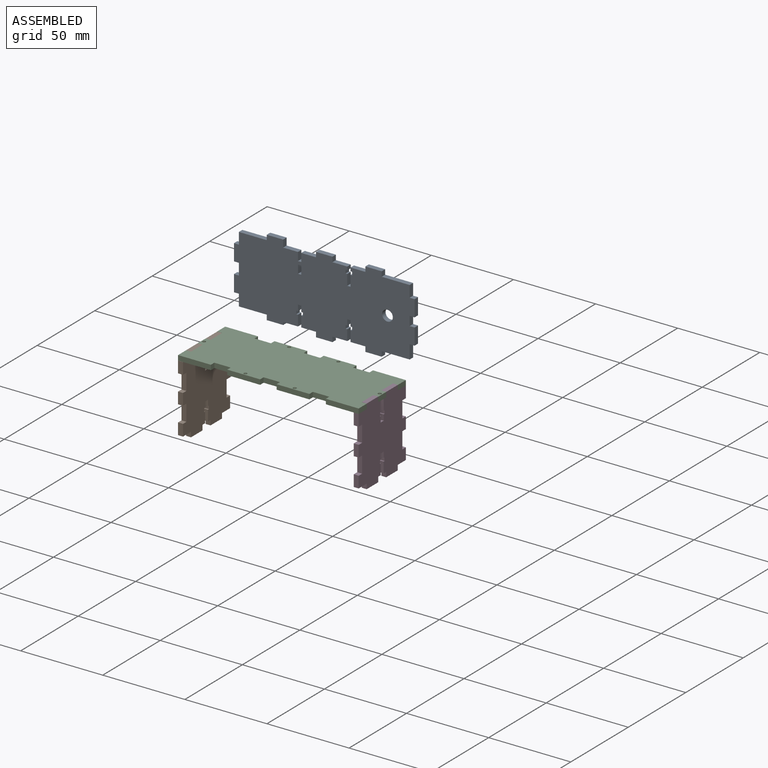
[diagram: assembled view]
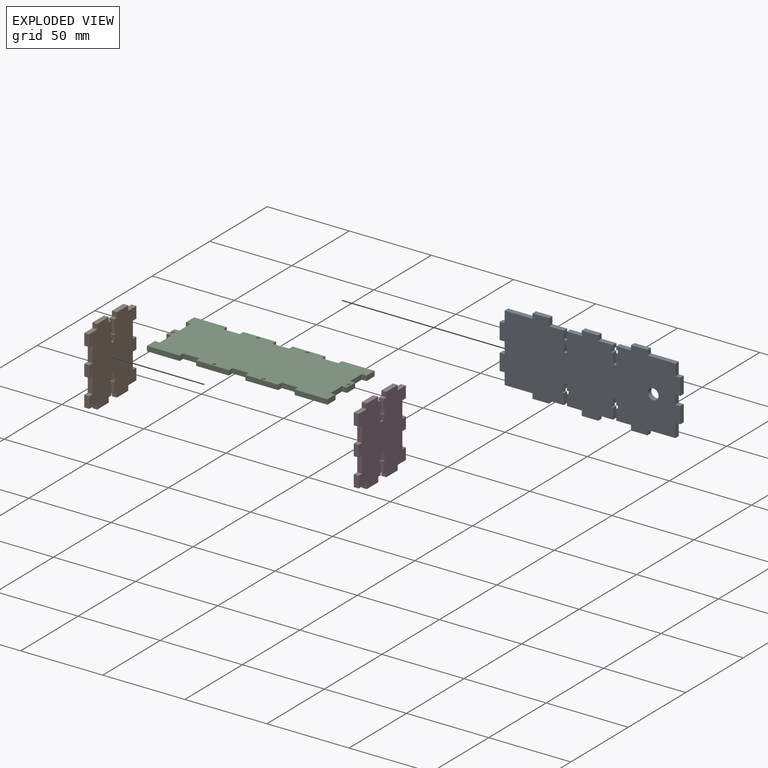
[diagram: exploded view]
GUIDED TOUR — MATED ASSEMBLY (Onshape document 57cf8fb3088a1510e5d0d866, AutoMate assembly 57cf8fb3088a1510e5d0d866_87a70e966cd90ac45dbf46fb_21659d6aa054b0124e8bbf33_default)

This assembly has 4 components, labeled P0..P3 below (a component is one placed occurrence of a part; the same part can appear more than once), held together by 2 mates. A mate is a constraint between two components; its type names the relative motion it leaves free:
  FASTENED — locks the two components together rigidly (no relative motion).
Axis/direction vectors are unit vectors and 'through' points are millimeter coordinates, both in the assembly's world frame.

MATES
  1. FASTENED "Fastened 2": P3 <-> P2, direction (-1.000, 0.000, 0.000) through (82.03, 22.98, -2.78) mm
  2. FASTENED "Fastened 1": P1 <-> P2, direction (1.000, 0.000, 0.000) through (-21.97, 5.98, -2.78) mm

ASSEMBLY ORDER
  1. P3 — the base component [order verified]
  2. P2 [order verified]
  3. P1 [order verified]
  4. P0 [order verified]
Order-tag legend:
  [order verified] — this step's position reverses a verified removal order: the component was checked to insert without passing through the ones already placed.

Of the 4 components, 4 carry the full construction recipe — the FeatureScript program that regenerates the part's solid from scratch; the rest are supplied as boundary geometry only.
Each toured component is shown spotlighted twice — in the assembled view, then in the exploded view, where a leader line traces a displaced component back to its assembled socket (saturated green if recipe-attached, orange if geometry-only; every other component desaturated gray) — followed by its recipe or geometry summary and the mates that hold it.
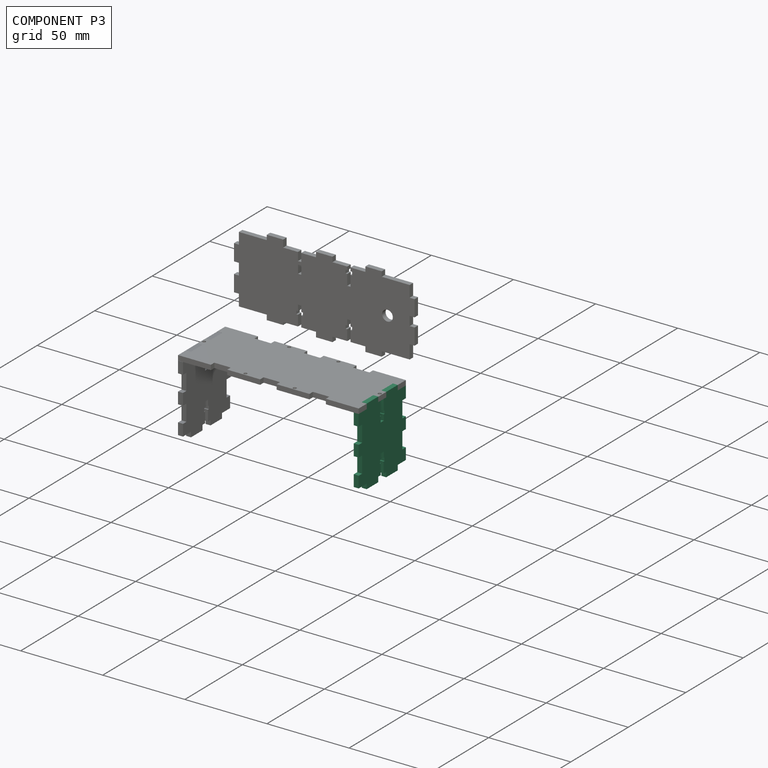
[diagram: component P3 — assembled]
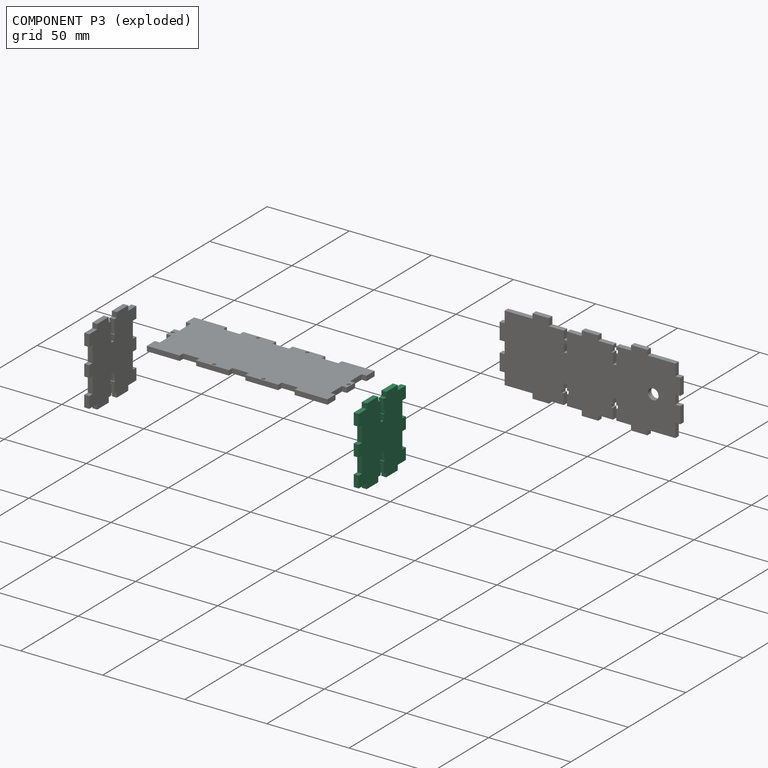
[diagram: component P3 — exploded]
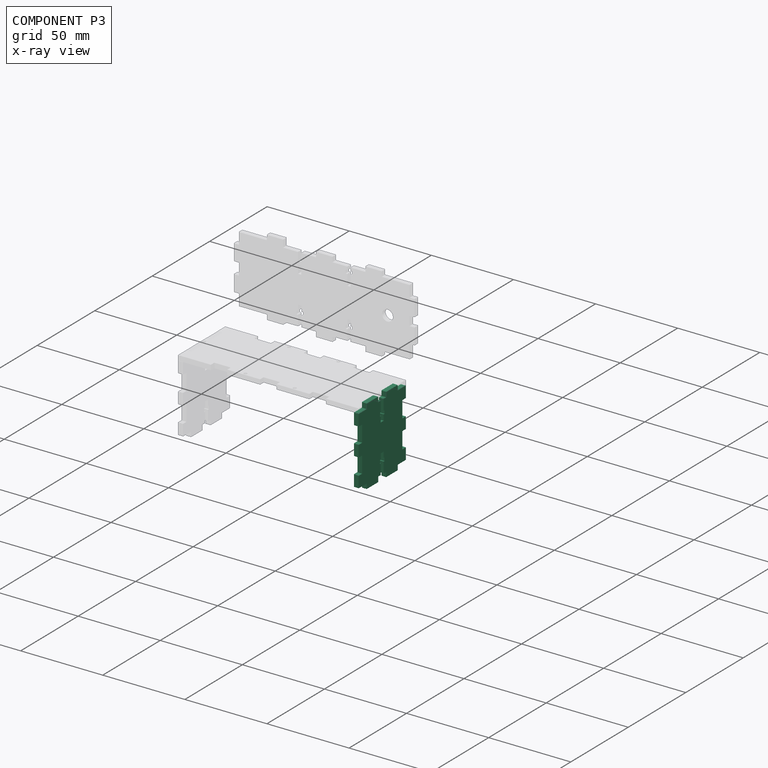
[diagram: component P3 — x-ray view]
COMPONENT P3 — same part as P1 (CADFS 00236618); its construction recipe is shown at P1.
Held by: FASTENED mate "Fastened 2" to P2.
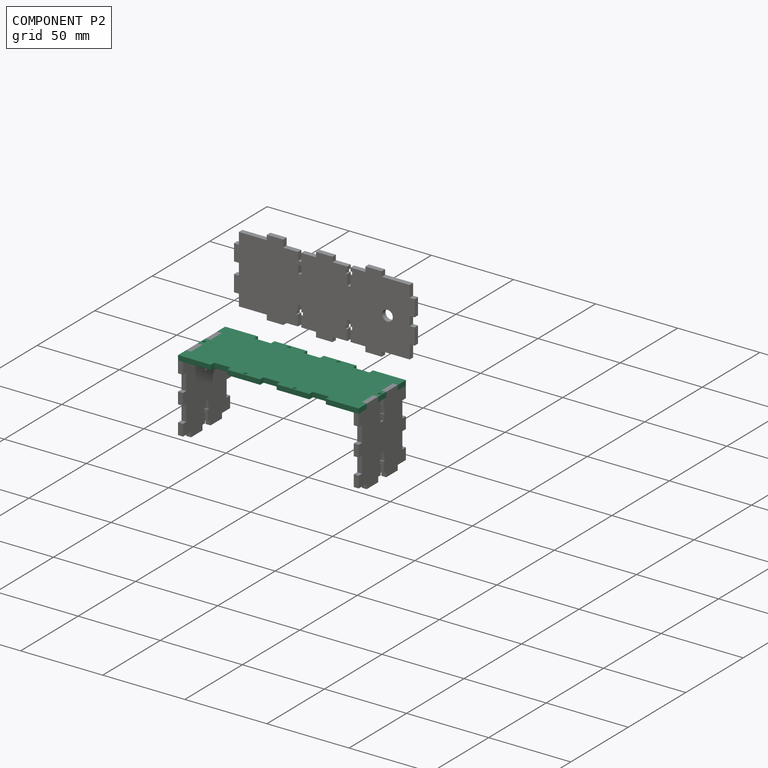
[diagram: component P2 — assembled]
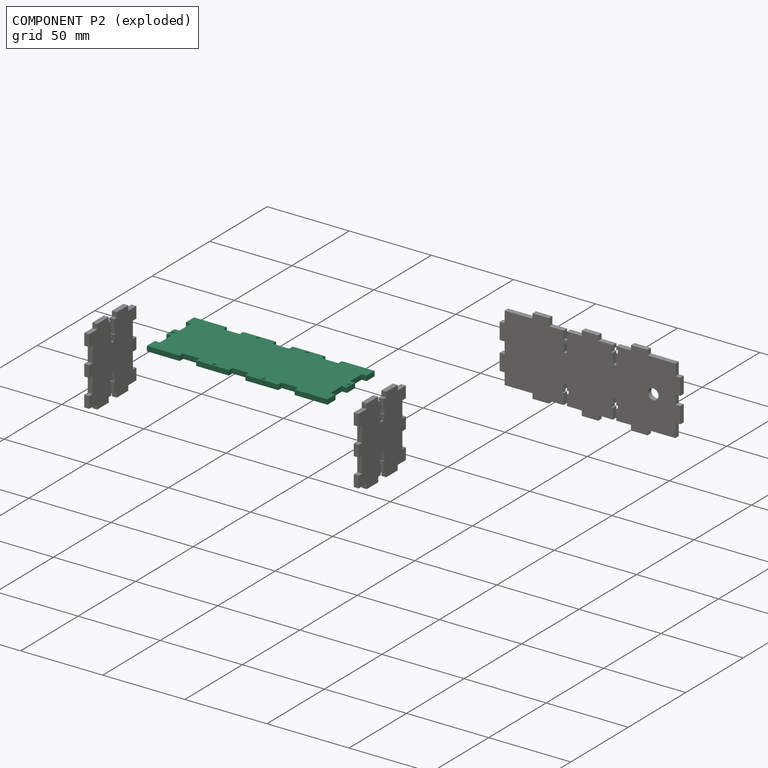
[diagram: component P2 — exploded]
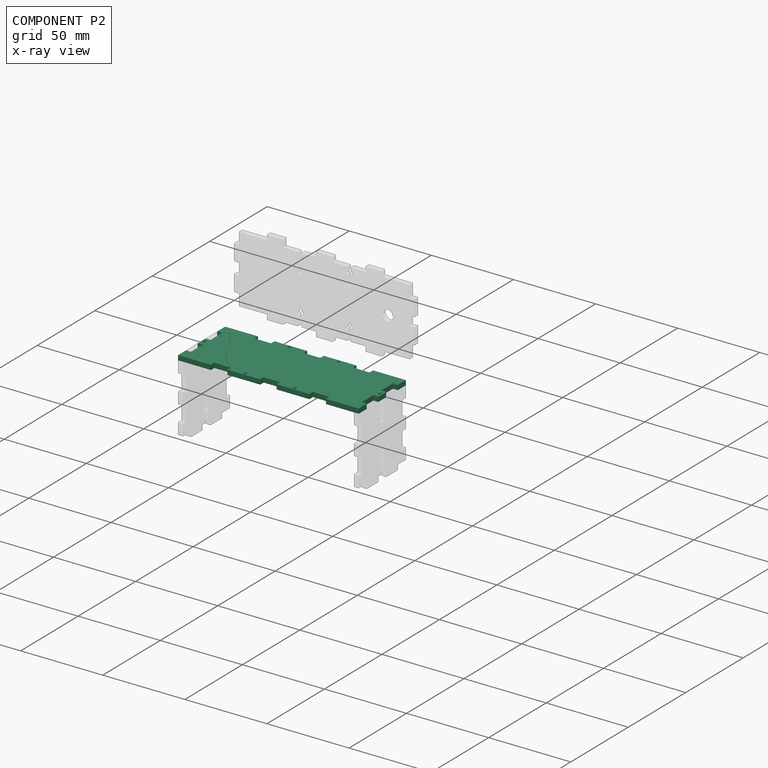
[diagram: component P2 — x-ray view]
COMPONENT P2 — recipe-attached (CADFS 00236616, mesh-verified: the recipe's output STEP matches this component's geometry to below the mesh-comparison resolution (tessellation chordal tolerance ~0.176 mm)).
Held by: FASTENED mate "Fastened 2" to P3; FASTENED mate "Fastened 1" to P1.
Construction recipe (FeatureScript — the CAD program that rebuilds this solid; sketch coordinates are in the units given by the * unit suffixes, e.g. mm):

FeatureScript 1511;
import(path : "onshape/std/geometry.fs", version : "1511.0");
import(path : "onshape/std/common.fs", version : "1511.0");
const mm = millimeter;
const VERTEX = EntityType.VERTEX;
const EDGE = EntityType.EDGE;
const FACE = EntityType.FACE;
const BODY = EntityType.BODY;
function v(x, y){return vector(x, y);}
function OD(order){return orderDisambiguation(order);}
function OSD(set){return originalSetDisambiguation(set);}
function TD(topology){return topologyDisambiguation(topology);}
function TDD(query){return trueDependencyDisambiguation(query);}
function sQuery(a, b, c) {return sketchEntityQuery(a, b, c);}

annotation { "Feature Type Name" : "Feature", "Feature Type Description" : "" }
export const myFeature = defineFeature(function(context is Context, id is Id, definition is map)
    precondition{}
    {
        {
            var Q0;
            Q0=qCreatedBy(makeId("Top.planeOp"),FACE);
            var sketch = newSketch(context, id + "F0", { "sketchPlane" : qUnion([Q0])});
            skLineSegment(sketch, "E0", {"start": v(0, 0) * mm, "end": v(0, 7) * mm});
            skLineSegment(sketch, "E1", {"start": v(0, 7) * mm, "end": v(3, 7) * mm});
            skLineSegment(sketch, "E2", {"start": v(3, 7) * mm, "end": v(3, 17) * mm});
            skLineSegment(sketch, "E3", {"start": v(3, 17) * mm, "end": v(0, 17) * mm});
            skLineSegment(sketch, "E4", {"start": v(0, 17) * mm, "end": v(0, 24) * mm});
            skLineSegment(sketch, "E5", {"start": v(0, 24) * mm, "end": v(3, 24) * mm});
            skLineSegment(sketch, "E6", {"start": v(3, 24) * mm, "end": v(3, 34) * mm});
            skLineSegment(sketch, "E7", {"start": v(3, 34) * mm, "end": v(0, 34) * mm});
            skLineSegment(sketch, "E8", {"start": v(0, 34) * mm, "end": v(0, 41) * mm});
            skLineSegment(sketch, "E9", {"start": v(0, 0) * mm, "end": v(20, 0) * mm});
            skLineSegment(sketch, "E10", {"start": v(20, 0) * mm, "end": v(20, 3) * mm});
            skLineSegment(sketch, "E11", {"start": v(20, 3) * mm, "end": v(30, 3) * mm});
            skLineSegment(sketch, "E12", {"start": v(30, 3) * mm, "end": v(30, 0) * mm});
            skLineSegment(sketch, "E13", {"start": v(30, 0) * mm, "end": v(50, 0) * mm});
            skLineSegment(sketch, "E14", {"start": v(50, 0) * mm, "end": v(50, 3) * mm});
            skLineSegment(sketch, "E15", {"start": v(50, 3) * mm, "end": v(60, 3) * mm});
            skLineSegment(sketch, "E16", {"start": v(60, 0) * mm, "end": v(80, 0) * mm});
            skLineSegment(sketch, "E17", {"start": v(80, 0) * mm, "end": v(80, 3) * mm});
            skLineSegment(sketch, "E18", {"start": v(80, 3) * mm, "end": v(90, 3) * mm});
            skLineSegment(sketch, "E19", {"start": v(90, 3) * mm, "end": v(90, 0) * mm});
            skLineSegment(sketch, "E20", {"start": v(90, 0) * mm, "end": v(110, 0) * mm});
            skLineSegment(sketch, "E21", {"start": v(60, 3) * mm, "end": v(60, 0) * mm});
            skLineSegment(sketch, "E22", {"start": v(55, 3) * mm, "end": v(55, 34) * mm, "construction": true});
            skLineSegment(sketch, "E23.MirrorCS", {"start": v(107, 17) * mm, "end": v(110, 17) * mm});
            skLineSegment(sketch, "E24.MirrorCS", {"start": v(110, 24) * mm, "end": v(107, 24) * mm});
            skLineSegment(sketch, "E25.MirrorCS", {"start": v(110, 7) * mm, "end": v(107, 7) * mm});
            skLineSegment(sketch, "E26.MirrorCS", {"start": v(107, 34) * mm, "end": v(110, 34) * mm});
            skLineSegment(sketch, "E27.MirrorCS", {"start": v(107, 7) * mm, "end": v(107, 17) * mm});
            skLineSegment(sketch, "E28.MirrorCS", {"start": v(110, 17) * mm, "end": v(110, 24) * mm});
            skLineSegment(sketch, "E29.MirrorCS", {"start": v(110, 34) * mm, "end": v(110, 41) * mm});
            skLineSegment(sketch, "E30.MirrorCS", {"start": v(110, 0) * mm, "end": v(110, 7) * mm});
            skLineSegment(sketch, "E31.MirrorCS", {"start": v(107, 24) * mm, "end": v(107, 34) * mm});
            skLineSegment(sketch, "E32", {"start": v(0, 20.5) * mm, "end": v(124.38, 20.5) * mm, "construction": true});
            skPoint(sketch, "E32.endSnap0", {"position": v(110, 20.5) * mm});
            skLineSegment(sketch, "E33.MirrorCS", {"start": v(50, 41) * mm, "end": v(50, 38) * mm});
            skLineSegment(sketch, "E34.MirrorCS", {"start": v(60, 38) * mm, "end": v(60, 41) * mm});
            skLineSegment(sketch, "E35.MirrorCS", {"start": v(90, 38) * mm, "end": v(90, 41) * mm});
            skLineSegment(sketch, "E36.MirrorCS", {"start": v(30, 38) * mm, "end": v(30, 41) * mm});
            skLineSegment(sketch, "E37.MirrorCS", {"start": v(20, 41) * mm, "end": v(20, 38) * mm});
            skLineSegment(sketch, "E38.MirrorCS", {"start": v(80, 41) * mm, "end": v(80, 38) * mm});
            skLineSegment(sketch, "E39.MirrorCS", {"start": v(60, 41) * mm, "end": v(80, 41) * mm});
            skLineSegment(sketch, "E40.MirrorCS", {"start": v(80, 38) * mm, "end": v(90, 38) * mm});
            skLineSegment(sketch, "E41.MirrorCS", {"start": v(0, 41) * mm, "end": v(20, 41) * mm});
            skLineSegment(sketch, "E42.MirrorCS", {"start": v(90, 41) * mm, "end": v(110, 41) * mm});
            skLineSegment(sketch, "E43.MirrorCS", {"start": v(20, 38) * mm, "end": v(30, 38) * mm});
            skLineSegment(sketch, "E44.MirrorCS", {"start": v(50, 38) * mm, "end": v(60, 38) * mm});
            skLineSegment(sketch, "E45.MirrorCS", {"start": v(30, 41) * mm, "end": v(50, 41) * mm});
            skCircle(sketch, "E46", {"center": v(40, 1.5) * mm, "radius": 1 * mm});
            skPoint(sketch, "E46.centerSnap0", {"position": v(40, 0) * mm});
            skCircle(sketch, "E47.MirrorC", {"center": v(70, 1.5) * mm, "radius": 1 * mm});
            skCircle(sketch, "E48.MirrorC", {"center": v(70, 39.5) * mm, "radius": 1 * mm});
            skCircle(sketch, "E49.MirrorC", {"center": v(40, 39.5) * mm, "radius": 1 * mm});
            skCircle(sketch, "E50", {"center": v(1.5, 20.5) * mm, "radius": 1 * mm});
            skCircle(sketch, "E51.MirrorC", {"center": v(108.5, 20.5) * mm, "radius": 1 * mm});
            skLineSegment(sketch, "E52", {"start": v(25, 38) * mm, "end": v(25, 3) * mm, "construction": true});
            skPoint(sketch, "E53.centerSnap0", {"position": v(3, 29) * mm});
            skLineSegment(sketch, "E54", {"start": v(85, 38) * mm, "end": v(85, 3) * mm, "construction": true});
            skSolve(sketch);
        }
        {
            var Q0;
            Q0=qSketchRegion(id+"F0",true);
            extrude(context, id + "F1", {"entities" : qUnion([Q0]), "endBound" : BoundingType.SYMMETRIC, "depth" : 3 * mm});
        }
    });
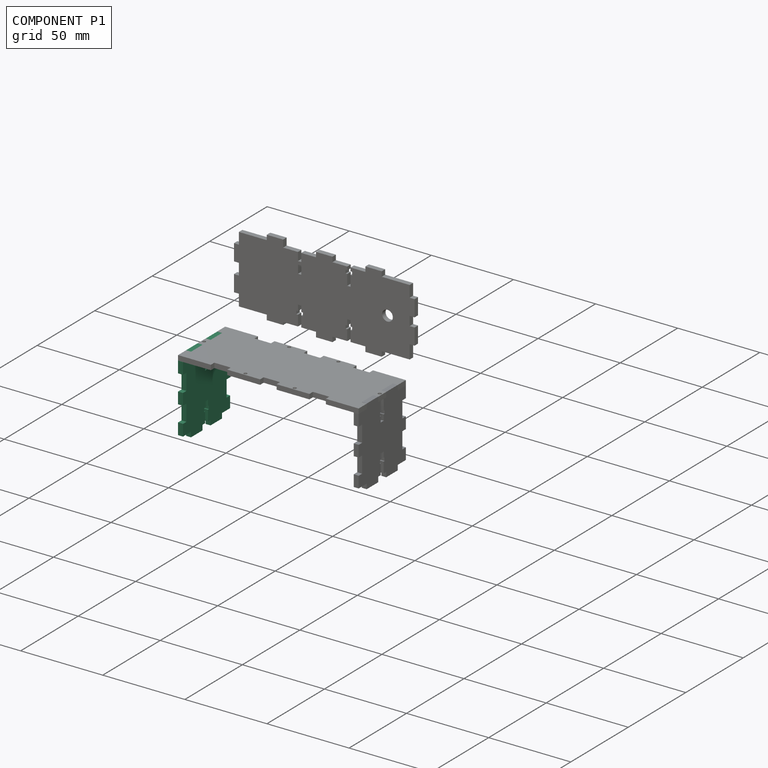
[diagram: component P1 — assembled]
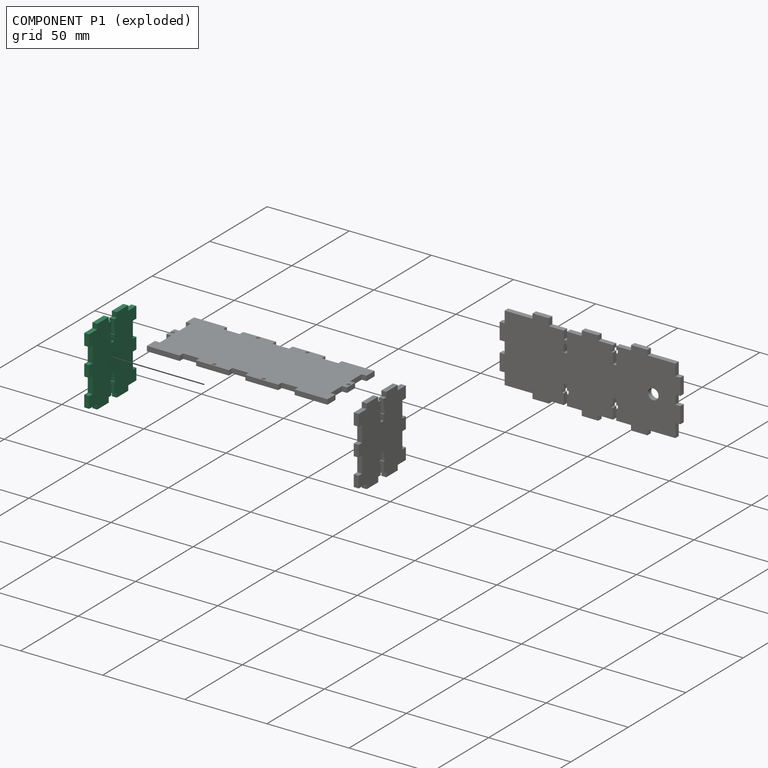
[diagram: component P1 — exploded]
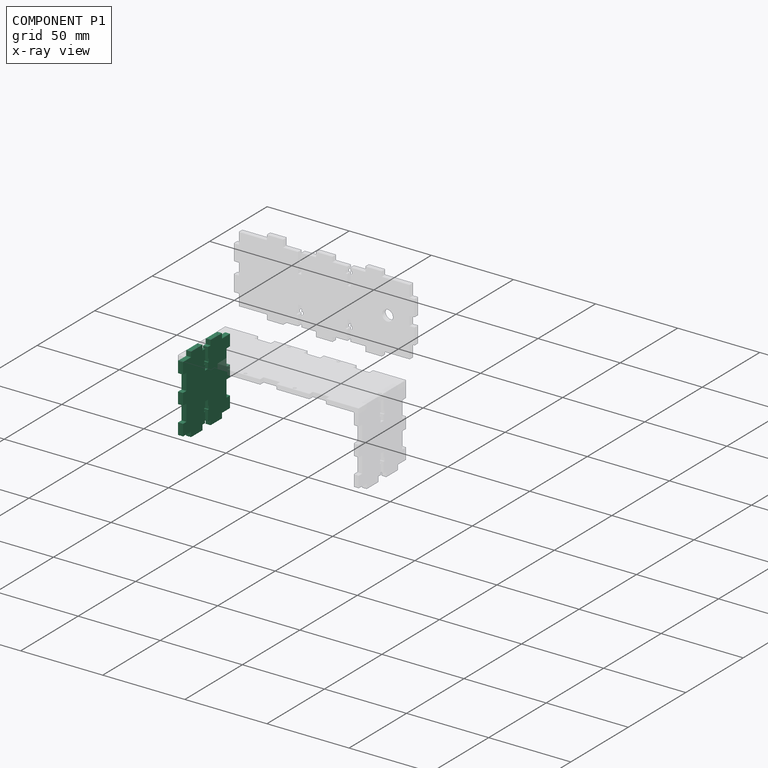
[diagram: component P1 — x-ray view]
COMPONENT P1 — recipe-attached (CADFS 00236618, mesh-verified: the recipe's output STEP matches this component's geometry to below the mesh-comparison resolution (tessellation chordal tolerance ~0.0938 mm)).
Held by: FASTENED mate "Fastened 1" to P2.
Construction recipe (FeatureScript — the CAD program that rebuilds this solid; sketch coordinates are in the units given by the * unit suffixes, e.g. mm):

FeatureScript 1511;
import(path : "onshape/std/geometry.fs", version : "1511.0");
import(path : "onshape/std/common.fs", version : "1511.0");
const mm = millimeter;
const VERTEX = EntityType.VERTEX;
const EDGE = EntityType.EDGE;
const FACE = EntityType.FACE;
const BODY = EntityType.BODY;
function v(x, y){return vector(x, y);}
function OD(order){return orderDisambiguation(order);}
function OSD(set){return originalSetDisambiguation(set);}
function TD(topology){return topologyDisambiguation(topology);}
function TDD(query){return trueDependencyDisambiguation(query);}
function sQuery(a, b, c) {return sketchEntityQuery(a, b, c);}

annotation { "Feature Type Name" : "Feature", "Feature Type Description" : "" }
export const myFeature = defineFeature(function(context is Context, id is Id, definition is map)
    precondition{}
    {
        {
            var Q0;
            Q0=qCreatedBy(makeId("Front.planeOp"),FACE);
            var sketch = newSketch(context, id + "F0", { "sketchPlane" : qUnion([Q0])});
            skLineSegment(sketch, "E0", {"start": v(0, 0) * mm, "end": v(7, 0) * mm});
            skLineSegment(sketch, "E1", {"start": v(7, 0) * mm, "end": v(7, 3) * mm});
            skLineSegment(sketch, "E2", {"start": v(7, 3) * mm, "end": v(17, 3) * mm});
            skLineSegment(sketch, "E3", {"start": v(17, 3) * mm, "end": v(17, 0) * mm});
            skLineSegment(sketch, "E4", {"start": v(17, 0) * mm, "end": v(19.25, 0) * mm});
            skLineSegment(sketch, "E5", {"start": v(24, 0) * mm, "end": v(24, 3.07) * mm});
            skLineSegment(sketch, "E6", {"start": v(24, 3.07) * mm, "end": v(34, 3.07) * mm});
            skLineSegment(sketch, "E7", {"start": v(34, 3.07) * mm, "end": v(34, 0) * mm});
            skLineSegment(sketch, "E8", {"start": v(34, 0) * mm, "end": v(41, 0) * mm});
            skLineSegment(sketch, "E9", {"start": v(41, -20.5) * mm, "end": v(0, -20.5) * mm, "construction": true});
            skLineSegment(sketch, "E10.top", {"start": v(19.25, -12) * mm, "end": v(21.75, -12) * mm});
            skLineSegment(sketch, "E10.left", {"start": v(19.25, 0) * mm, "end": v(19.25, -6.5) * mm});
            skLineSegment(sketch, "E10.right", {"start": v(21.75, 0) * mm, "end": v(21.75, -6.5) * mm});
            skLineSegment(sketch, "E11.bottom", {"start": v(18.5, -8.5) * mm, "end": v(19.25, -8.5) * mm});
            skLineSegment(sketch, "E11.top", {"start": v(18.5, -6.5) * mm, "end": v(19.25, -6.5) * mm});
            skLineSegment(sketch, "E11.left", {"start": v(18.5, -8.5) * mm, "end": v(18.5, -6.5) * mm});
            skLineSegment(sketch, "E11.right", {"start": v(22.5, -8.5) * mm, "end": v(22.5, -6.5) * mm});
            skLineSegment(sketch, "E12.trimOffspring", {"start": v(21.75, -6.5) * mm, "end": v(22.5, -6.5) * mm});
            skLineSegment(sketch, "E13.trimOffspring", {"start": v(21.75, -8.5) * mm, "end": v(21.75, -12) * mm});
            skLineSegment(sketch, "E14.trimOffspring", {"start": v(19.25, -8.5) * mm, "end": v(19.25, -12) * mm});
            skLineSegment(sketch, "E15.trimOffspring", {"start": v(21.75, -8.5) * mm, "end": v(22.5, -8.5) * mm});
            skLineSegment(sketch, "E16.trimOffspring", {"start": v(21.75, 0) * mm, "end": v(24, 0) * mm});
            skLineSegment(sketch, "E17.MirrorCS", {"start": v(18.5, -34.5) * mm, "end": v(19.25, -34.5) * mm});
            skLineSegment(sketch, "E18.MirrorCS", {"start": v(22.5, -32.5) * mm, "end": v(22.5, -34.5) * mm});
            skLineSegment(sketch, "E19.MirrorCS", {"start": v(34, -44.07) * mm, "end": v(34, -41) * mm});
            skLineSegment(sketch, "E20.MirrorCS", {"start": v(17, -44) * mm, "end": v(17, -41) * mm});
            skLineSegment(sketch, "E21.MirrorCS", {"start": v(21.75, -41) * mm, "end": v(24, -41) * mm});
            skLineSegment(sketch, "E22.MirrorCS", {"start": v(19.25, -29) * mm, "end": v(21.75, -29) * mm});
            skLineSegment(sketch, "E23.MirrorCS", {"start": v(17, -41) * mm, "end": v(19.25, -41) * mm});
            skLineSegment(sketch, "E24.MirrorCS", {"start": v(24, -41) * mm, "end": v(24, -44.07) * mm});
            skLineSegment(sketch, "E25.MirrorCS", {"start": v(18.5, -32.5) * mm, "end": v(19.25, -32.5) * mm});
            skLineSegment(sketch, "E26.MirrorCS", {"start": v(7, -41) * mm, "end": v(7, -44) * mm});
            skLineSegment(sketch, "E27.MirrorCS", {"start": v(21.75, -32.5) * mm, "end": v(22.5, -32.5) * mm});
            skLineSegment(sketch, "E28.MirrorCS", {"start": v(21.75, -34.5) * mm, "end": v(22.5, -34.5) * mm});
            skLineSegment(sketch, "E29.MirrorCS", {"start": v(18.5, -32.5) * mm, "end": v(18.5, -34.5) * mm});
            skLineSegment(sketch, "E30.MirrorCS", {"start": v(24, -44.07) * mm, "end": v(34, -44.07) * mm});
            skLineSegment(sketch, "E31.MirrorCS", {"start": v(19.25, -41) * mm, "end": v(19.25, -34.5) * mm});
            skLineSegment(sketch, "E32.MirrorCS", {"start": v(0, -41) * mm, "end": v(7, -41) * mm});
            skLineSegment(sketch, "E33.MirrorCS", {"start": v(21.75, -32.5) * mm, "end": v(21.75, -29) * mm});
            skLineSegment(sketch, "E34.MirrorCS", {"start": v(19.25, -32.5) * mm, "end": v(19.25, -29) * mm});
            skLineSegment(sketch, "E35.MirrorCS", {"start": v(7, -44) * mm, "end": v(17, -44) * mm});
            skLineSegment(sketch, "E36.MirrorCS", {"start": v(34, -41) * mm, "end": v(41, -41) * mm});
            skLineSegment(sketch, "E37.MirrorCS", {"start": v(21.75, -41) * mm, "end": v(21.75, -34.5) * mm});
            skLineSegment(sketch, "E38", {"start": v(20.5, -29) * mm, "end": v(20.5, 3.72) * mm, "construction": true});
            skPoint(sketch, "E39.MirrorCS.start.orphan", {"position": v(0, -20.5) * mm});
            skPoint(sketch, "E40.MirrorCS.end.orphan", {"position": v(41, -20.5) * mm});
            skLineSegment(sketch, "E41", {"start": v(41, 0) * mm, "end": v(41, -7) * mm});
            skLineSegment(sketch, "E42", {"start": v(41, -7) * mm, "end": v(38, -7) * mm});
            skLineSegment(sketch, "E43", {"start": v(38, -7) * mm, "end": v(38, -17) * mm});
            skLineSegment(sketch, "E44", {"start": v(38, -17) * mm, "end": v(41, -17) * mm});
            skLineSegment(sketch, "E45", {"start": v(41, -17) * mm, "end": v(41, -24) * mm});
            skLineSegment(sketch, "E46", {"start": v(41, -24) * mm, "end": v(38, -24) * mm});
            skLineSegment(sketch, "E47", {"start": v(38, -24) * mm, "end": v(38, -34) * mm});
            skLineSegment(sketch, "E48", {"start": v(38, -34) * mm, "end": v(41, -34) * mm});
            skLineSegment(sketch, "E49", {"start": v(41, -34) * mm, "end": v(41, -41) * mm});
            skLineSegment(sketch, "E50.MirrorCS", {"start": v(0, -24) * mm, "end": v(3, -24) * mm});
            skLineSegment(sketch, "E51.MirrorCS", {"start": v(0, -7) * mm, "end": v(3, -7) * mm});
            skLineSegment(sketch, "E52.MirrorCS", {"start": v(3, -34) * mm, "end": v(0, -34) * mm});
            skLineSegment(sketch, "E53.MirrorCS", {"start": v(0, -17) * mm, "end": v(0, -24) * mm});
            skLineSegment(sketch, "E54.MirrorCS", {"start": v(3, -17) * mm, "end": v(0, -17) * mm});
            skLineSegment(sketch, "E55.MirrorCS", {"start": v(0, -34) * mm, "end": v(0, -41) * mm});
            skLineSegment(sketch, "E56.MirrorCS", {"start": v(3, -7) * mm, "end": v(3, -17) * mm});
            skLineSegment(sketch, "E57.MirrorCS", {"start": v(0, 0) * mm, "end": v(0, -7) * mm});
            skLineSegment(sketch, "E58.MirrorCS", {"start": v(3, -24) * mm, "end": v(3, -34) * mm});
            skSolve(sketch);
        }
        {
            var Q0;
            Q0=qSketchRegion(id+"F0",true);
            extrude(context, id + "F1", {"entities" : qUnion([Q0]), "endBound" : BoundingType.SYMMETRIC, "depth" : 3 * mm});
        }
    });
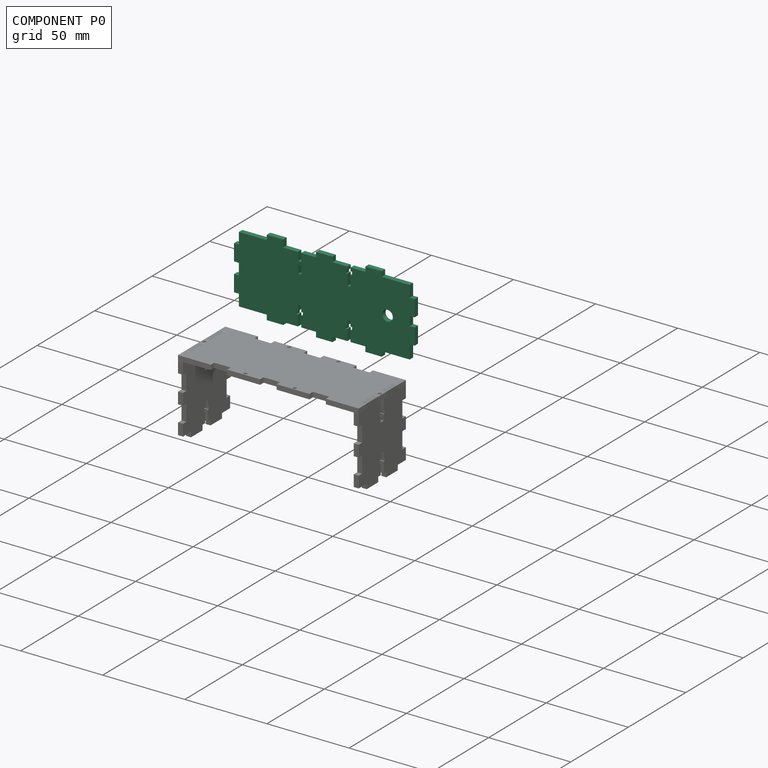
[diagram: component P0 — assembled]
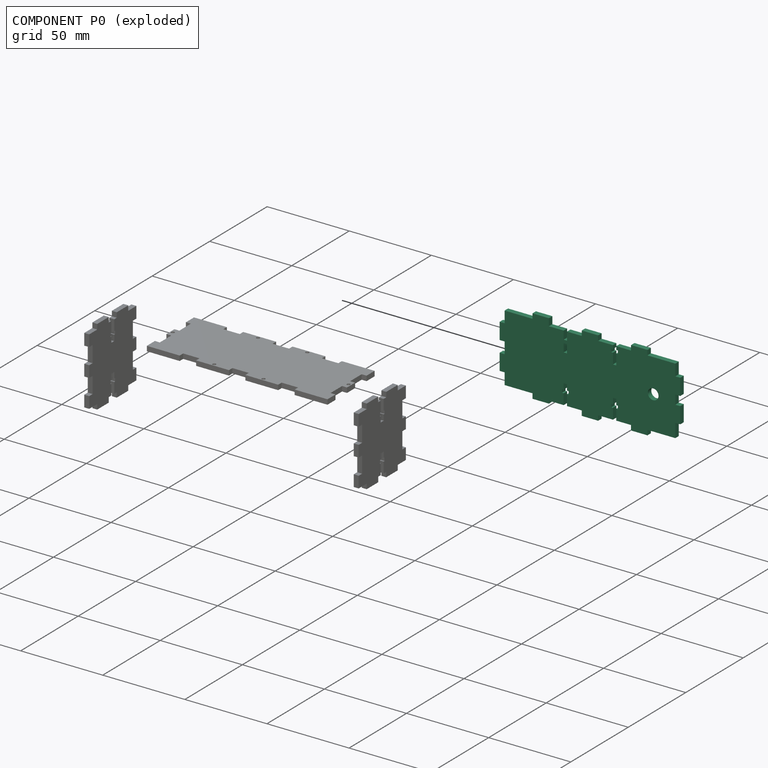
[diagram: component P0 — exploded]
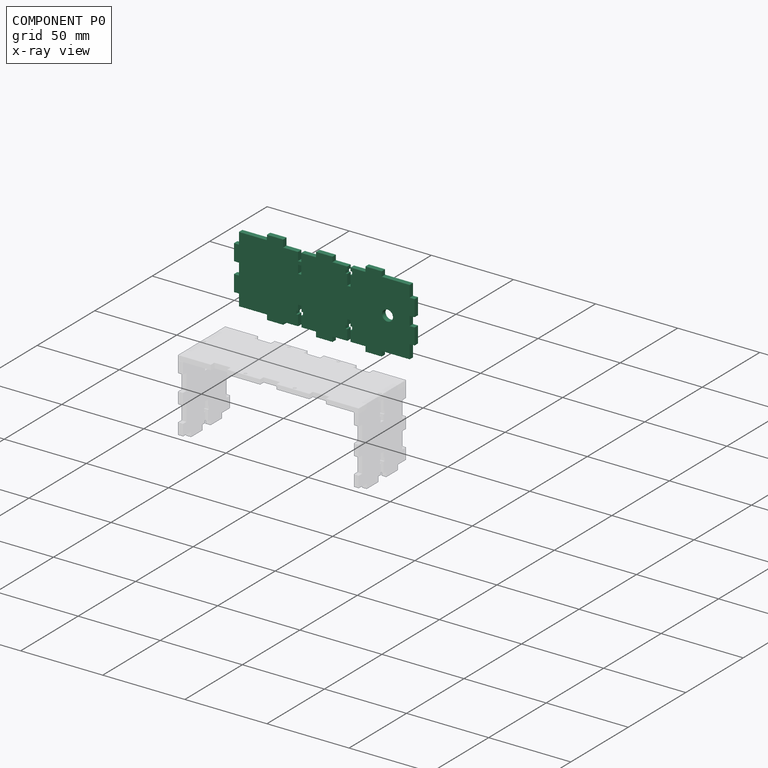
[diagram: component P0 — x-ray view]
COMPONENT P0 — recipe-attached (CADFS 00236617, mesh-verified: the recipe's output STEP matches this component's geometry to below the mesh-comparison resolution (tessellation chordal tolerance ~0.18 mm)).
Held by: no mates (free).
Construction recipe (FeatureScript — the CAD program that rebuilds this solid; sketch coordinates are in the units given by the * unit suffixes, e.g. mm):

FeatureScript 1511;
import(path : "onshape/std/geometry.fs", version : "1511.0");
import(path : "onshape/std/common.fs", version : "1511.0");
const mm = millimeter;
const VERTEX = EntityType.VERTEX;
const EDGE = EntityType.EDGE;
const FACE = EntityType.FACE;
const BODY = EntityType.BODY;
function v(x, y){return vector(x, y);}
function OD(order){return orderDisambiguation(order);}
function OSD(set){return originalSetDisambiguation(set);}
function TD(topology){return topologyDisambiguation(topology);}
function TDD(query){return trueDependencyDisambiguation(query);}
function sQuery(a, b, c) {return sketchEntityQuery(a, b, c);}

annotation { "Feature Type Name" : "Feature", "Feature Type Description" : "" }
export const myFeature = defineFeature(function(context is Context, id is Id, definition is map)
    precondition{}
    {
        {
            var Q0;
            Q0=qCreatedBy(makeId("Front.planeOp"),FACE);
            var sketch = newSketch(context, id + "F0", { "sketchPlane" : qUnion([Q0])});
            skLineSegment(sketch, "E0.MirrorCS", {"start": v(-8, -0.02) * mm, "end": v(-8, -3.02) * mm});
            skLineSegment(sketch, "E1.MirrorCS", {"start": v(-38, 1.38) * mm, "end": v(-38, -1.62) * mm});
            skLineSegment(sketch, "E2.MirrorCS", {"start": v(-28, -1.62) * mm, "end": v(-28, -0.02) * mm});
            skLineSegment(sketch, "E3.MirrorCS", {"start": v(-28, -0.02) * mm, "end": v(-19, -0.02) * mm});
            skLineSegment(sketch, "E4.MirrorCS", {"start": v(-55, 1.38) * mm, "end": v(-38, 1.38) * mm});
            skLineSegment(sketch, "E5.MirrorCS", {"start": v(-38, -1.62) * mm, "end": v(-28, -1.62) * mm});
            skLineSegment(sketch, "E6", {"start": v(-55, 1.38) * mm, "end": v(-55, 8.38) * mm});
            skLineSegment(sketch, "E7", {"start": v(-55, 8.38) * mm, "end": v(-58, 8.38) * mm});
            skLineSegment(sketch, "E8", {"start": v(-58, 8.38) * mm, "end": v(-58, 18.38) * mm});
            skLineSegment(sketch, "E9", {"start": v(-58, 18.38) * mm, "end": v(-55, 18.38) * mm});
            skLineSegment(sketch, "E10", {"start": v(-55, 18.38) * mm, "end": v(-55, 25.38) * mm});
            skLineSegment(sketch, "E11", {"start": v(-55, 25.38) * mm, "end": v(-58, 25.38) * mm});
            skLineSegment(sketch, "E12", {"start": v(-58, 25.38) * mm, "end": v(-58, 35.38) * mm});
            skLineSegment(sketch, "E13", {"start": v(-58, 35.38) * mm, "end": v(-55, 35.38) * mm});
            skLineSegment(sketch, "E14", {"start": v(-55, 35.38) * mm, "end": v(-55, 42.38) * mm});
            skLineSegment(sketch, "E15.MirrorCS", {"start": v(-8, 40.98) * mm, "end": v(-8, 43.98) * mm});
            skLineSegment(sketch, "E16.MirrorCS", {"start": v(-38, 42.38) * mm, "end": v(-38, 45.38) * mm});
            skLineSegment(sketch, "E17.MirrorCS", {"start": v(-28, 45.38) * mm, "end": v(-28, 40.98) * mm});
            skLineSegment(sketch, "E18.MirrorCS", {"start": v(-38, 45.38) * mm, "end": v(-28, 45.38) * mm});
            skLineSegment(sketch, "E19.MirrorCS", {"start": v(-55, 42.38) * mm, "end": v(-38, 42.38) * mm});
            skLineSegment(sketch, "E20.bottom", {"start": v(-19, 11.98) * mm, "end": v(-17, 11.98) * mm});
            skLineSegment(sketch, "E20.left", {"start": v(-19, 11.98) * mm, "end": v(-19, 8.48) * mm});
            skLineSegment(sketch, "E20.right", {"start": v(-17, 11.98) * mm, "end": v(-17, 8.48) * mm});
            skLineSegment(sketch, "E21.bottom", {"start": v(-20, 8.48) * mm, "end": v(-19, 8.48) * mm});
            skLineSegment(sketch, "E21.top", {"start": v(-20, 6.48) * mm, "end": v(-19, 6.48) * mm});
            skLineSegment(sketch, "E21.left", {"start": v(-20, 8.48) * mm, "end": v(-20, 6.48) * mm});
            skLineSegment(sketch, "E21.right", {"start": v(-16, 8.48) * mm, "end": v(-16, 6.48) * mm});
            skLineSegment(sketch, "E22.trimOffspring", {"start": v(-17, -0.02) * mm, "end": v(-8, -0.02) * mm});
            skLineSegment(sketch, "E23.trimOffspring", {"start": v(-17, 6.48) * mm, "end": v(-16, 6.48) * mm});
            skLineSegment(sketch, "E24.trimOffspring", {"start": v(-17, 6.48) * mm, "end": v(-17, -0.02) * mm});
            skLineSegment(sketch, "E25.trimOffspring", {"start": v(-19, 6.48) * mm, "end": v(-19, -0.02) * mm});
            skLineSegment(sketch, "E26.trimOffspring", {"start": v(-17, 8.48) * mm, "end": v(-16, 8.48) * mm});
            skPoint(sketch, "E27.orphan", {"position": v(0, 69.16) * mm});
            skPoint(sketch, "E28.endSnap0", {"position": v(-56.5, 8.38) * mm});
            skLineSegment(sketch, "E29", {"start": v(-8, 43.98) * mm, "end": v(2, 43.98) * mm});
            skLineSegment(sketch, "E30", {"start": v(2, 43.98) * mm, "end": v(2, 40.98) * mm});
            skLineSegment(sketch, "E31", {"start": v(2, 40.98) * mm, "end": v(11, 40.98) * mm});
            skLineSegment(sketch, "E32", {"start": v(-8, -3.02) * mm, "end": v(2, -3.02) * mm});
            skLineSegment(sketch, "E33", {"start": v(2, -3.02) * mm, "end": v(2, -0.02) * mm});
            skLineSegment(sketch, "E34", {"start": v(2, -0.02) * mm, "end": v(11, -0.02) * mm});
            skLineSegment(sketch, "E35", {"start": v(22, 40.98) * mm, "end": v(22, 43.98) * mm});
            skLineSegment(sketch, "E36", {"start": v(22, 43.98) * mm, "end": v(32, 43.98) * mm});
            skLineSegment(sketch, "E37", {"start": v(32, 43.98) * mm, "end": v(32, 40.98) * mm});
            skLineSegment(sketch, "E38", {"start": v(32, 40.98) * mm, "end": v(49, 40.98) * mm});
            skLineSegment(sketch, "E39", {"start": v(22, -0.02) * mm, "end": v(22, -3.02) * mm});
            skLineSegment(sketch, "E40", {"start": v(22, -3.02) * mm, "end": v(32, -3.02) * mm});
            skLineSegment(sketch, "E41", {"start": v(32, -3.02) * mm, "end": v(32, -0.02) * mm});
            skLineSegment(sketch, "E42", {"start": v(32, -0.02) * mm, "end": v(49, -0.02) * mm});
            skLineSegment(sketch, "E43", {"start": v(49, 40.98) * mm, "end": v(49, 33.98) * mm});
            skLineSegment(sketch, "E44", {"start": v(49, 33.98) * mm, "end": v(52, 33.98) * mm});
            skLineSegment(sketch, "E45", {"start": v(52, 33.98) * mm, "end": v(52, 23.98) * mm});
            skLineSegment(sketch, "E46", {"start": v(52, 23.98) * mm, "end": v(49, 23.98) * mm});
            skLineSegment(sketch, "E47", {"start": v(49, 23.98) * mm, "end": v(49, 18.38) * mm});
            skLineSegment(sketch, "E48", {"start": v(49, 18.38) * mm, "end": v(52, 18.38) * mm});
            skLineSegment(sketch, "E49", {"start": v(52, 18.38) * mm, "end": v(52, 8.38) * mm});
            skLineSegment(sketch, "E50", {"start": v(52, 8.38) * mm, "end": v(49, 8.38) * mm});
            skLineSegment(sketch, "E51", {"start": v(49, 8.38) * mm, "end": v(49, -0.02) * mm});
            skLineSegment(sketch, "E52", {"start": v(-3, 61.79) * mm, "end": v(-3, -7.76) * mm, "construction": true});
            skLineSegment(sketch, "E53.MirrorCS", {"start": v(14, 6.48) * mm, "end": v(13, 6.48) * mm});
            skLineSegment(sketch, "E54.MirrorCS", {"start": v(14, 38.88) * mm, "end": v(13, 38.88) * mm});
            skLineSegment(sketch, "E55.MirrorCS", {"start": v(11, 6.48) * mm, "end": v(10, 6.48) * mm});
            skLineSegment(sketch, "E56.MirrorCS", {"start": v(10, 8.48) * mm, "end": v(10, 6.48) * mm});
            skLineSegment(sketch, "E57.MirrorCS", {"start": v(11, 8.48) * mm, "end": v(10, 8.48) * mm});
            skLineSegment(sketch, "E58.MirrorCS", {"start": v(14, 8.48) * mm, "end": v(14, 6.48) * mm});
            skLineSegment(sketch, "E59.MirrorCS", {"start": v(14, 36.88) * mm, "end": v(14, 38.88) * mm});
            skLineSegment(sketch, "E60.MirrorCS", {"start": v(14, 8.48) * mm, "end": v(13, 8.48) * mm});
            skLineSegment(sketch, "E61.MirrorCS", {"start": v(14, 36.88) * mm, "end": v(13, 36.88) * mm});
            skLineSegment(sketch, "E62.MirrorCS", {"start": v(13, 11.98) * mm, "end": v(11, 11.98) * mm});
            skLineSegment(sketch, "E63.MirrorCS", {"start": v(13, 30.38) * mm, "end": v(11, 30.38) * mm});
            skLineSegment(sketch, "E64.MirrorCS", {"start": v(13, 11.98) * mm, "end": v(13, 8.48) * mm});
            skLineSegment(sketch, "E65.MirrorCS", {"start": v(11, 11.98) * mm, "end": v(11, 8.48) * mm});
            skLineSegment(sketch, "E66.MirrorCS", {"start": v(13, 6.48) * mm, "end": v(13, -0.02) * mm});
            skLineSegment(sketch, "E67.MirrorCS", {"start": v(11, 6.48) * mm, "end": v(11, -0.02) * mm});
            skLineSegment(sketch, "E68.MirrorCS", {"start": v(11, 35.88) * mm, "end": v(11, 36.88) * mm});
            skLineSegment(sketch, "E69.MirrorCS", {"start": v(13, 30.38) * mm, "end": v(13, 36.88) * mm});
            skLineSegment(sketch, "E70.MirrorCS", {"start": v(11, 30.38) * mm, "end": v(11, 36.88) * mm});
            skLineSegment(sketch, "E71.MirrorCS", {"start": v(13, 38.88) * mm, "end": v(13, 40.98) * mm});
            skLineSegment(sketch, "E72.trimOffspring", {"start": v(13, 40.98) * mm, "end": v(22, 40.98) * mm});
            skLineSegment(sketch, "E73.trimOffspring", {"start": v(13, -0.02) * mm, "end": v(22, -0.02) * mm});
            skLineSegment(sketch, "E74", {"start": v(12, 30.38) * mm, "end": v(12, 38.73) * mm, "construction": true});
            skLineSegment(sketch, "E75.MirrorCS", {"start": v(10, 38.88) * mm, "end": v(11, 38.88) * mm});
            skLineSegment(sketch, "E76.MirrorCS", {"start": v(10, 36.88) * mm, "end": v(10, 38.88) * mm});
            skLineSegment(sketch, "E77.MirrorCS", {"start": v(10, 36.88) * mm, "end": v(11, 36.88) * mm});
            skLineSegment(sketch, "E78.trimOffspring", {"start": v(11, 38.88) * mm, "end": v(11, 40.98) * mm});
            skLineSegment(sketch, "E79", {"start": v(49, 40.98) * mm, "end": v(22, -0.02) * mm, "construction": true});
            skLineSegment(sketch, "E80", {"start": v(22, 40.98) * mm, "end": v(49, -0.02) * mm, "construction": true});
            skLineSegment(sketch, "E81", {"start": v(-28, 40.98) * mm, "end": v(-19, 40.98) * mm});
            skLineSegment(sketch, "E82", {"start": v(-18, 40.98) * mm, "end": v(-18, 20.75) * mm, "construction": true});
            skLineSegment(sketch, "E83.top", {"start": v(-19, 28.98) * mm, "end": v(-17, 28.98) * mm});
            skLineSegment(sketch, "E83.left", {"start": v(-19, 40.98) * mm, "end": v(-19, 28.98) * mm});
            skLineSegment(sketch, "E83.right", {"start": v(-17, 40.98) * mm, "end": v(-17, 28.98) * mm});
            skPoint(sketch, "E84.orphan", {"position": v(-17, 44.32) * mm});
            skLineSegment(sketch, "E85.trimOffspring", {"start": v(-17, 40.98) * mm, "end": v(-8, 40.98) * mm});
            skLineSegment(sketch, "E86.bottom", {"start": v(-20, 35.98) * mm, "end": v(-16, 35.98) * mm});
            skLineSegment(sketch, "E86.top", {"start": v(-20, 33.98) * mm, "end": v(-16, 33.98) * mm});
            skLineSegment(sketch, "E86.left", {"start": v(-20, 35.98) * mm, "end": v(-20, 33.98) * mm});
            skLineSegment(sketch, "E86.right", {"start": v(-16, 35.98) * mm, "end": v(-16, 33.98) * mm});
            skLineSegment(sketch, "E87", {"start": v(-20, 34.98) * mm, "end": v(-16, 34.98) * mm, "construction": true});
            skCircle(sketch, "E88", {"center": v(35.5, 20.48) * mm, "radius": 3.25 * mm});
            skSolve(sketch);
        }
        {
            var Q0;
            Q0=qSketchRegion(id+"F0",true);
            extrude(context, id + "F1", {"entities" : qUnion([Q0]), "endBound" : BoundingType.SYMMETRIC, "depth" : 3 * mm});
        }
    });
PROVENANCE & LICENSES
Assembly (occurrences, transforms, mates, per-part STEP geometry): AutoMate dataset, Zenodo record 7776208, CC0.
Construction recipes: CADFS (HuggingFace VladPyatov/CADFS, CC-BY-4.0, layered over the ABC dataset), FeatureScript reconstruction programs keyed by ABC model id.
Join: ABC meta listings map ABC model id -> Onshape documentId; within a shared document, parts are matched by geometric signature (bounding-box dims + volume at 0.1% relative tolerance, exact B-rep face/solid counts).
Verification: 4 of this assembly's 4 components carry a recipe attachment, and every attachment is mesh-verified: the CADFS STEP and the AutoMate member STEP were compared as meshes in their shared local frame (symmetric sampled-point-to-mesh distance); worst across the 4 attachments: below the mesh-comparison resolution (tessellation chordal tolerance ~0.18 mm) on a 120 mm part.
Renders: orthographic iso camera (az 35 / el 25); the floor grid conveys scale (grid pitch printed in each image; no ruler). In the exploded view each component is displaced by its stored offset vector: the offsets alone carry the explosion direction (mate normal/axis signs are not orientation cues and do not encode it), and separation distances are assigned per mate-chain, not proportionally to assembly-order depth.
